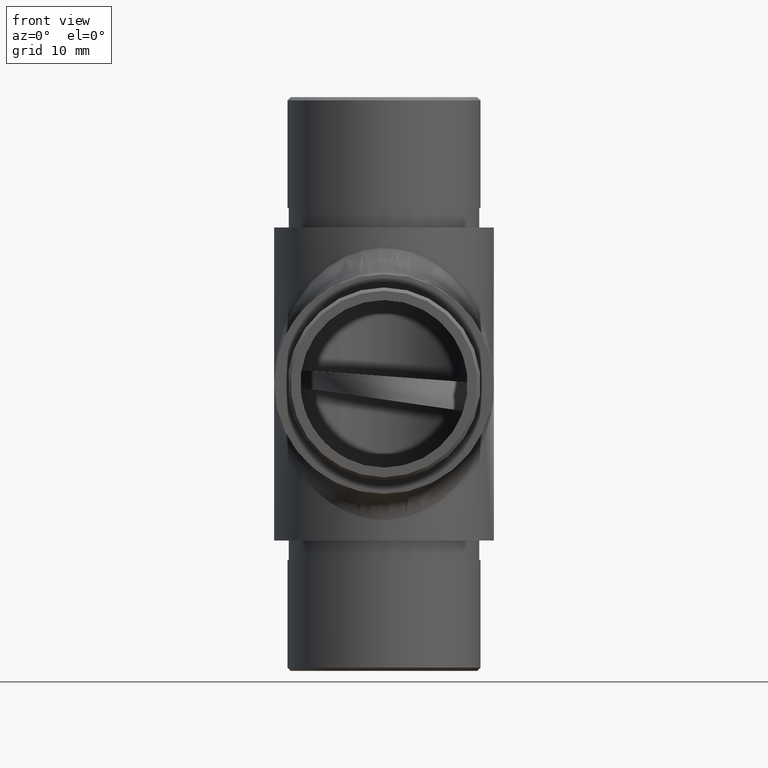
[diagram: clean part render]
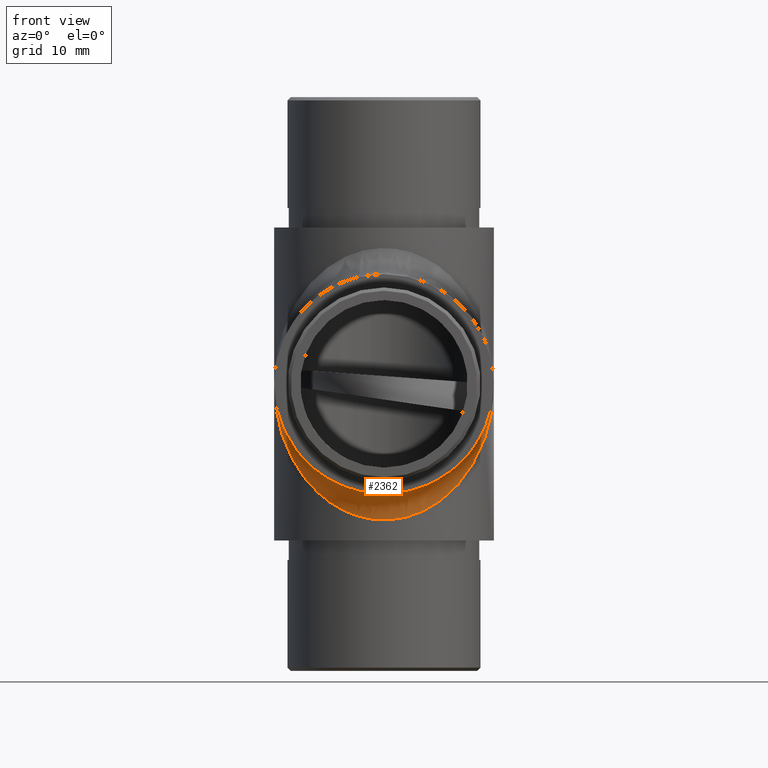
[diagram: same view with one face highlighted and labeled with its STEP entity id]
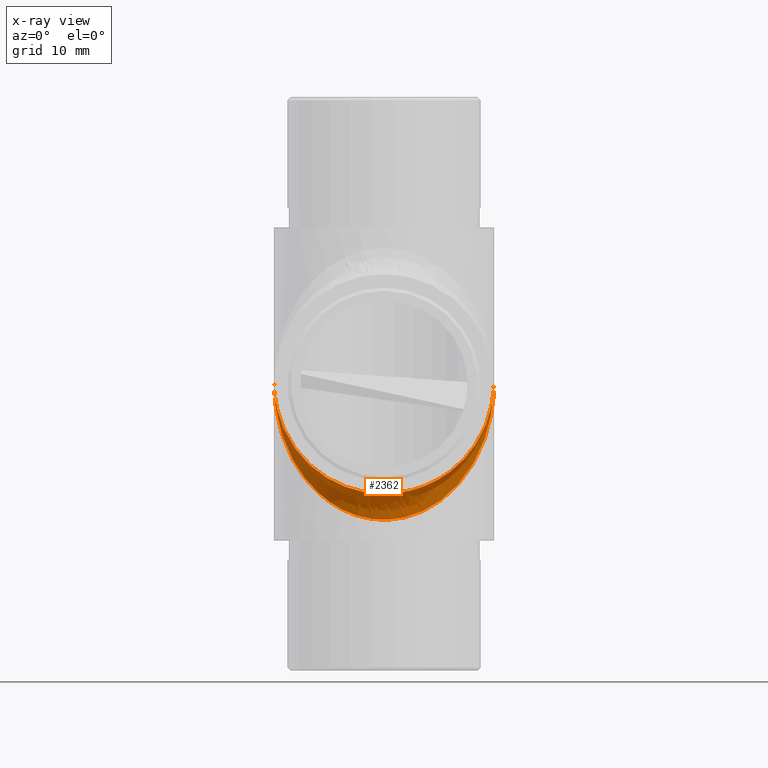
[diagram: x-ray of the same camera — body ghosted, the highlighted face saturated]
A machine part, front view. The second image highlights one B-rep face of the part: STEP entity #2362.
The next image is the same camera in x-ray: the body ghosted, the highlighted face saturated — about 0% of this face is hidden behind the body in this view.
In plain terms, the highlighted face is a freeform B-spline surface patch.
Its self-contained STEP definition (entity closure, byte-faithful):
#187 = CARTESIAN_POINT ( 'NONE',  ( -16.85000000000000100, 43.99999999999136000, 0.0000000000000000000 ) ) ;
#194 = CARTESIAN_POINT ( 'NONE',  ( 16.31108053040000900, 38.59395844683861300, -4.368911279164767500 ) ) ;
#233 = CARTESIAN_POINT ( 'NONE',  ( 15.14533538338070100, 36.53290217290492600, -9.239702652509180300 ) ) ;
#315 = CARTESIAN_POINT ( 'NONE',  ( 5.429333843744183600, 24.21489071946825800, -15.98940486219680500 ) ) ;
#395 = CARTESIAN_POINT ( 'NONE',  ( 2.205632572964829800, 27.25861658083938000, -20.71559906761628900 ) ) ;
#439 = CARTESIAN_POINT ( 'NONE',  ( -16.18320611204128700, 39.11993642511946900, -4.880063574875631400 ) ) ;
#477 = CARTESIAN_POINT ( 'NONE',  ( 4.368911278980258200, 23.81685287479314200, -16.31108053043648100 ) ) ;
#518 = CARTESIAN_POINT ( 'NONE',  ( -6.236427480021551300, 28.25924469784327900, -15.74075530214829000 ) ) ;
#532 = CARTESIAN_POINT ( 'NONE',  ( -16.85000000000000100, 43.99999999999136000, 0.0000000000000000000 ) ) ;
#560 = CARTESIAN_POINT ( 'NONE',  ( -4.342449596267225200, 27.64958167091530700, -16.35041832907626300 ) ) ;
#1094 = CARTESIAN_POINT ( 'NONE',  ( 15.14533538338084100, 34.76029734747895400, -7.467097827087195900 ) ) ;
#1135 = CARTESIAN_POINT ( 'NONE',  ( 9.124614200867558400, 29.72291654400032000, -14.27708345599276300 ) ) ;
#1175 = CARTESIAN_POINT ( 'NONE',  ( 10.06959098737964100, 30.36625838957310800, -13.63374161042177100 ) ) ;
#1214 = CARTESIAN_POINT ( 'NONE',  ( 11.13493074748825500, 31.30543222149326300, -15.70811502561981300 ) ) ;
#1255 = CARTESIAN_POINT ( 'NONE',  ( 16.31108053039977100, 39.63108872082771200, -5.406041553149431200 ) ) ;
#1289 =( BOUNDED_SURFACE ( )  B_SPLINE_SURFACE ( 3, 2, ( 
 ( #7553, #4851, #4723 ),
 ( #5660, #4884, #3945 ),
 ( #10125, #11187, #7589 ),
 ( #1255, #10245, #194 ),
 ( #6507, #11148, #4809 ),
 ( #233, #2036, #1094 ),
 ( #6547, #8364, #6590 ),
 ( #8325, #2913, #9225 ),
 ( #11027, #4766, #7432 ),
 ( #1214, #1175, #5732 ),
 ( #11108, #1135, #7512 ),
 ( #2956, #9262, #10167 ),
 ( #2076, #8403, #9304 ),
 ( #3901, #5700, #315 ),
 ( #6636, #4153, #477 ),
 ( #395, #10449, #3240 ),
 ( #9545, #5039, #9422 ),
 ( #2323, #3278, #9587 ),
 ( #8640, #5896, #6709 ),
 ( #6836, #8556, #5936 ),
 ( #11350, #560, #6797 ),
 ( #1422, #518, #2248 ),
 ( #4965, #6872, #1466 ),
 ( #7785, #3156, #4190 ),
 ( #1292, #2200, #10486 ),
 ( #5085, #7634, #11275 ),
 ( #7743, #2363, #11228 ),
 ( #1373, #10323, #8680 ),
 ( #5778, #8515, #3118 ),
 ( #4026, #5848, #5815 ),
 ( #4928, #439, #6750 ),
 ( #1333, #7670, #9468 ),
 ( #4070, #10363, #7709 ),
 ( #2285, #8601, #3197 ) ),
 .UNSPECIFIED., .F., .F., .T. ) 
 B_SPLINE_SURFACE_WITH_KNOTS ( ( 4, 2, 2, 2, 2, 2, 2, 2, 2, 2, 2, 2, 2, 2, 2, 2, 4 ),
 ( 3, 3 ),
 ( 4.712388980384482700, 4.908738521233869900, 5.105088062083257900, 5.301437602932646000, 5.497787143782034000, 5.694136684631422100, 5.890486225480810100, 6.086835766330198200, 6.283185307179586200, 6.479534848028974300, 6.675884388878362300, 6.872233929727750400, 7.068583470577138400, 7.264933011426526500, 7.461282552275914500, 7.657632093125302600, 7.853981633974689700 ),
 ( 0.0000000000000000000, 1.000000000000000000 ),
 .UNSPECIFIED. ) 
 GEOMETRIC_REPRESENTATION_ITEM ( )  RATIONAL_B_SPLINE_SURFACE ( (
 ( 1.000000000000000000, 1.000000000000000000, 1.000000000000000000),
 ( 1.000000000000000000, 1.000009746409141100, 1.000000000000000000),
 ( 1.000000000000000000, 0.9967613244628226200, 1.000000000000000000),
 ( 1.000000000000000000, 0.9841171504849133300, 1.000000000000000000),
 ( 1.000000000000000000, 0.9747108043681669300, 1.000000000000000000),
 ( 1.000000000000000000, 0.9506740353941340900, 1.000000000000000000),
 ( 1.000000000000000000, 0.9360421842784351100, 1.000000000000000000),
 ( 1.000000000000000000, 0.9031650994079384300, 1.000000000000000000),
 ( 1.000000000000000000, 0.8849191471439731300, 1.000000000000000000),
 ( 1.000000000000000000, 0.8471316604248794200, 1.000000000000000000),
 ( 1.000000000000000000, 0.8275942696101810100, 1.000000000000000000),
 ( 1.000000000000000000, 0.7902180086331380700, 1.000000000000000000),
 ( 1.000000000000000000, 0.7723968218336978400, 1.000000000000000000),
 ( 1.000000000000000000, 0.7418334178634920000, 1.000000000000000000),
 ( 1.000000000000000000, 0.7291288940308305900, 1.000000000000000000),
 ( 1.000000000000000000, 0.7117460025124818800, 1.000000000000000000),
 ( 1.000000000000000000, 0.7071067811865475700, 1.000000000000000000),
 ( 1.000000000000000000, 0.7071067811865475700, 1.000000000000000000),
 ( 1.000000000000000000, 0.7117460025127909700, 1.000000000000000000),
 ( 1.000000000000000000, 0.7291288940305221700, 1.000000000000000000),
 ( 1.000000000000000000, 0.7418334178635748200, 1.000000000000000000),
 ( 1.000000000000000000, 0.7723968218336183500, 1.000000000000000000),
 ( 1.000000000000000000, 0.7902180086332256700, 1.000000000000000000),
 ( 1.000000000000000000, 0.8275942696100954100, 1.000000000000000000),
 ( 1.000000000000000000, 0.8471316604245083800, 1.000000000000000000),
 ( 1.000000000000000000, 0.8849191471443441600, 1.000000000000000000),
 ( 1.000000000000000000, 0.9031650994078408400, 1.000000000000000000),
 ( 1.000000000000000000, 0.9360421842785344700, 1.000000000000000000),
 ( 1.000000000000000000, 0.9506740353940310600, 1.000000000000000000),
 ( 1.000000000000000000, 0.9747108043682701800, 1.000000000000000000),
 ( 1.000000000000000000, 0.9841171504850199100, 1.000000000000000000),
 ( 1.000000000000000000, 0.9967613244627169200, 1.000000000000000000),
 ( 1.000000000000000000, 1.000009746409221200, 1.000000000000000000),
 ( 1.000000000000000000, 1.000000000000000000, 1.000000000000000000) ) ) 
 REPRESENTATION_ITEM ( '' )  SURFACE ( )  );
#1292 = CARTESIAN_POINT ( 'NONE',  ( -11.13493074748609000, 31.30543222149109900, -15.70811502562270300 ) ) ;
#1333 = CARTESIAN_POINT ( 'NONE',  ( -16.74138341918963800, 41.79436742721428300, -2.729224874915700600 ) ) ;
#1344 = CARTESIAN_POINT ( 'NONE',  ( 16.85000000000000100, 43.99999999999136000, 0.0000000000000000000 ) ) ;
#1373 = CARTESIAN_POINT ( 'NONE',  ( -14.62296244341089100, 35.55561114034348700, -10.44899155630445100 ) ) ;
#1422 = CARTESIAN_POINT ( 'NONE',  ( -7.467097826962148400, 28.85466461655878900, -18.74066722519672400 ) ) ;
#1466 = CARTESIAN_POINT ( 'NONE',  ( -8.444388859714980100, 25.90571116057623500, -14.62296244336586800 ) ) ;
#2036 = CARTESIAN_POINT ( 'NONE',  ( 14.75521852980670100, 35.72321692286661900, -8.276783077119782600 ) ) ;
#2062 = EDGE_CURVE ( 'NONE', #6107, #8567, #5268, .T. ) ;
#2076 = CARTESIAN_POINT ( 'NONE',  ( 7.467097826961505400, 28.85466461655851600, -18.74066722519678100 ) ) ;
#2200 = CARTESIAN_POINT ( 'NONE',  ( -10.06959098737777000, 30.36625838956684500, -13.63374161042358600 ) ) ;
#2248 = CARTESIAN_POINT ( 'NONE',  ( -7.467097826961494700, 25.25933277479463300, -15.14533538343265200 ) ) ;
#2285 = CARTESIAN_POINT ( 'NONE',  ( -16.84999999999999800, 43.99999999999653300, 4.350575517637576400E-012 ) ) ;
#2323 = CARTESIAN_POINT ( 'NONE',  ( -1.102829920684192500, 27.14999999999136200, -20.84999999999999800 ) ) ;
#2362 = ADVANCED_FACE ( 'NONE', ( #3323 ), #1289, .F. ) ;
#2363 = CARTESIAN_POINT ( 'NONE',  ( -12.66332492391171800, 32.75385034841907800, -11.24614965157452900 ) ) ;
#2871 = CARTESIAN_POINT ( 'NONE',  ( 16.85000000000000500, 10.29999999999135700, -41.69999999999998200 ) ) ;
#2913 = CARTESIAN_POINT ( 'NONE',  ( 12.66332492391018900, 32.75385034841914200, -11.24614965157447300 ) ) ;
#2956 = CARTESIAN_POINT ( 'NONE',  ( 8.444388859713681600, 29.37703755662492700, -18.09428883942058200 ) ) ;
#3118 = CARTESIAN_POINT ( 'NONE',  ( -15.14533538338065800, 34.76029734748541200, -7.467097827087637400 ) ) ;
#3156 = CARTESIAN_POINT ( 'NONE',  ( -9.124614200866378900, 29.72291654399245100, -14.27708345599665000 ) ) ;
#3197 = CARTESIAN_POINT ( 'NONE',  ( -16.84999999999999800, 43.99999999999570800, 3.515932732479288600E-012 ) ) ;
#3240 = CARTESIAN_POINT ( 'NONE',  ( 2.205632572964069100, 23.28440093237507100, -16.74138341915222100 ) ) ;
#3278 = CARTESIAN_POINT ( 'NONE',  ( -0.8410305341891493000, 27.14999999999136200, -16.84999999999999400 ) ) ;
#3323 = FACE_OUTER_BOUND ( 'NONE', #6862, .T. ) ;
#3897 =( BOUNDED_CURVE ( )  B_SPLINE_CURVE ( 3, ( #6628, #2871, #5614, #187 ),
 .UNSPECIFIED., .F., .T. ) 
 B_SPLINE_CURVE_WITH_KNOTS ( ( 4, 4 ),
 ( 4.712388980384689700, 7.853981633974482800 ),
 .UNSPECIFIED. ) 
 CURVE ( )  GEOMETRIC_REPRESENTATION_ITEM ( )  RATIONAL_B_SPLINE_CURVE ( ( 1.000000000000000000, 0.3333333333333333700, 0.3333333333333333700, 1.000000000000000000 ) ) 
 REPRESENTATION_ITEM ( '' )  );
#3901 = CARTESIAN_POINT ( 'NONE',  ( 5.429333843744704100, 28.01059513779495400, -19.78510928052309800 ) ) ;
#3945 = CARTESIAN_POINT ( 'NONE',  ( 16.85000000000022500, 42.63535521121603000, -1.102842431229376100 ) ) ;
#4026 = CARTESIAN_POINT ( 'NONE',  ( -15.98940486225154700, 38.57066615637881300, -6.718196477108933500 ) ) ;
#4070 = CARTESIAN_POINT ( 'NONE',  ( -16.84999999999977000, 42.89715756876943000, -1.364644788774033600 ) ) ;
#4153 = CARTESIAN_POINT ( 'NONE',  ( 3.433620484055472000, 27.45426317449491200, -16.54573682549888100 ) ) ;
#4190 = CARTESIAN_POINT ( 'NONE',  ( -10.27832799304784200, 27.42200600639220200, -13.39756349122840700 ) ) ;
#4723 = CARTESIAN_POINT ( 'NONE',  ( 16.84999999999999800, 43.99999999999567300, 3.490128179448521500E-012 ) ) ;
#4766 = CARTESIAN_POINT ( 'NONE',  ( 11.83575767567037400, 31.88548071180320800, -12.11451928818586800 ) ) ;
#4809 = CARTESIAN_POINT ( 'NONE',  ( 15.98940486225156500, 37.28180352288563200, -5.429333843611384900 ) ) ;
#4851 = CARTESIAN_POINT ( 'NONE',  ( 16.84999999999999800, 43.99999999999609200, 3.904386717068524400E-012 ) ) ;
#4884 = CARTESIAN_POINT ( 'NONE',  ( 16.85000000000334500, 42.76626791916243800, -1.233732080837000500 ) ) ;
#4928 = CARTESIAN_POINT ( 'NONE',  ( -16.31108053040106000, 39.63108872083415000, -5.406041553149346000 ) ) ;
#4965 = CARTESIAN_POINT ( 'NONE',  ( -8.444388859716228900, 29.37703755662663200, -18.09428883941512500 ) ) ;
#5039 = CARTESIAN_POINT ( 'NONE',  ( 0.8410305341891267700, 27.14999999999136200, -16.84999999999999400 ) ) ;
#5045 = EDGE_CURVE ( 'NONE', #8567, #6107, #3897, .T. ) ;
#5085 = CARTESIAN_POINT ( 'NONE',  ( -12.69456777850468900, 32.86506925250910900, -13.77823774985326300 ) ) ;
#5268 =( BOUNDED_CURVE ( )  B_SPLINE_CURVE ( 3, ( #532, #8568, #8614, #1344 ),
 .UNSPECIFIED., .F., .T. ) 
 B_SPLINE_CURVE_WITH_KNOTS ( ( 4, 4 ),
 ( 4.712388980384689700, 7.853981633974482800 ),
 .UNSPECIFIED. ) 
 CURVE ( )  GEOMETRIC_REPRESENTATION_ITEM ( )  RATIONAL_B_SPLINE_CURVE ( ( 1.000000000000000000, 0.3333333333333333700, 0.3333333333333333700, 1.000000000000000000 ) ) 
 REPRESENTATION_ITEM ( '' )  );
#5614 = CARTESIAN_POINT ( 'NONE',  ( -16.84999999999999400, 10.29999999999135700, -41.69999999999998900 ) ) ;
#5660 = CARTESIAN_POINT ( 'NONE',  ( 16.84999999999976700, 42.89715756876760400, -1.364644788776298500 ) ) ;
#5700 = CARTESIAN_POINT ( 'NONE',  ( 4.342449596267668400, 27.64958167091524300, -16.35041832907633400 ) ) ;
#5732 = CARTESIAN_POINT ( 'NONE',  ( 11.13493074748765500, 28.29188497437299400, -12.69456777849915100 ) ) ;
#5778 = CARTESIAN_POINT ( 'NONE',  ( -15.14533538338204400, 36.53290217290816600, -9.239702652509169700 ) ) ;
#5815 = CARTESIAN_POINT ( 'NONE',  ( -15.98940486225175500, 37.28180352287920100, -5.429333843610924900 ) ) ;
#5848 = CARTESIAN_POINT ( 'NONE',  ( -15.78273877976839900, 37.94284857874085000, -6.057151421240127400 ) ) ;
#5896 = CARTESIAN_POINT ( 'NONE',  ( -1.673412477040923100, 27.20255413854964000, -16.79744586144421700 ) ) ;
#5936 = CARTESIAN_POINT ( 'NONE',  ( -4.368911278979851400, 23.81685287479315200, -16.31108053043655900 ) ) ;
#6107 = VERTEX_POINT ( 'NONE', #9093 ) ;
#6507 = CARTESIAN_POINT ( 'NONE',  ( 15.98940486225287600, 38.57066615638203200, -6.718196477108945100 ) ) ;
#6547 = CARTESIAN_POINT ( 'NONE',  ( 14.62296244340801900, 35.55561114033919500, -10.44899155630450900 ) ) ;
#6590 = CARTESIAN_POINT ( 'NONE',  ( 14.62296244340836000, 33.55100844368531200, -8.444388859650976200 ) ) ;
#6628 = CARTESIAN_POINT ( 'NONE',  ( 16.85000000000000100, 43.99999999999136000, 0.0000000000000000000 ) ) ;
#6636 = CARTESIAN_POINT ( 'NONE',  ( 4.368911278980132100, 27.68891946955475800, -20.18314712519821800 ) ) ;
#6709 = CARTESIAN_POINT ( 'NONE',  ( -2.205632572964586000, 23.28440093237508500, -16.74138341915211800 ) ) ;
#6750 = CARTESIAN_POINT ( 'NONE',  ( -16.31108053040015800, 38.59395844684532800, -4.368911279164065000 ) ) ;
#6797 = CARTESIAN_POINT ( 'NONE',  ( -5.429333843743753700, 24.21489071946831500, -15.98940486219699300 ) ) ;
#6836 = CARTESIAN_POINT ( 'NONE',  ( -4.368911278980185400, 27.68891946955477600, -20.18314712519820400 ) ) ;
#6862 = EDGE_LOOP ( 'NONE', ( #7498, #7472 ) ) ;
#6872 = CARTESIAN_POINT ( 'NONE',  ( -7.205786267712555900, 28.66320101736110700, -15.33679898263342300 ) ) ;
#7432 = CARTESIAN_POINT ( 'NONE',  ( 12.69456777850144900, 30.22176225013374000, -11.13493074748503300 ) ) ;
#7472 = ORIENTED_EDGE ( 'NONE', *, *, #2062, .F. ) ;
#7498 = ORIENTED_EDGE ( 'NONE', *, *, #5045, .F. ) ;
#7512 = CARTESIAN_POINT ( 'NONE',  ( 10.27832799305030200, 27.42200600639757700, -13.39756349122677300 ) ) ;
#7553 = CARTESIAN_POINT ( 'NONE',  ( 16.84999999999999800, 43.99999999999650400, 4.318645254688526800E-012 ) ) ;
#7589 = CARTESIAN_POINT ( 'NONE',  ( 16.74138341919002900, 41.27077512507888500, -2.205632572772831000 ) ) ;
#7634 = CARTESIAN_POINT ( 'NONE',  ( -11.83575767567143600, 31.88548071180857900, -12.11451928818475400 ) ) ;
#7670 = CARTESIAN_POINT ( 'NONE',  ( -16.71365960650736700, 41.52494544016030900, -2.475054559828975700 ) ) ;
#7709 = CARTESIAN_POINT ( 'NONE',  ( -16.85000000000022500, 42.63535521120861200, -1.102842431213726600 ) ) ;
#7743 = CARTESIAN_POINT ( 'NONE',  ( -13.39756349118887300, 33.72167200688461000, -12.71828716060839600 ) ) ;
#7785 = CARTESIAN_POINT ( 'NONE',  ( -10.27832799304812300, 30.60243650876283900, -16.57799399359915800 ) ) ;
#8325 = CARTESIAN_POINT ( 'NONE',  ( 13.39756349119168300, 33.72167200688882400, -12.71828716060845300 ) ) ;
#8364 = CARTESIAN_POINT ( 'NONE',  ( 14.11730994237764500, 34.67240740627911300, -9.327592593711411700 ) ) ;
#8403 = CARTESIAN_POINT ( 'NONE',  ( 6.236427480020731600, 28.25924469784321100, -15.74075530214835800 ) ) ;
#8515 = CARTESIAN_POINT ( 'NONE',  ( -14.75521852980175400, 35.72321692287955800, -8.276783077123976500 ) ) ;
#8556 = CARTESIAN_POINT ( 'NONE',  ( -3.433620484054097100, 27.45426317449259900, -16.54573682549644100 ) ) ;
#8567 = VERTEX_POINT ( 'NONE', #9434 ) ;
#8568 = CARTESIAN_POINT ( 'NONE',  ( -16.85000000000000500, 2.299999999992973900, -33.69999999999999600 ) ) ;
#8601 = CARTESIAN_POINT ( 'NONE',  ( -16.84999999999999800, 43.99999999999612800, 3.933254125058433300E-012 ) ) ;
#8614 = CARTESIAN_POINT ( 'NONE',  ( 16.84999999999999400, 2.299999999992967200, -33.69999999999999600 ) ) ;
#8640 = CARTESIAN_POINT ( 'NONE',  ( -2.205632572964885800, 27.25861658083939100, -20.71559906761627400 ) ) ;
#8680 = CARTESIAN_POINT ( 'NONE',  ( -14.62296244340791400, 33.55100844369152900, -8.444388859651640500 ) ) ;
#9093 = CARTESIAN_POINT ( 'NONE',  ( -16.85000000000000100, 43.99999999999136000, 0.0000000000000000000 ) ) ;
#9225 = CARTESIAN_POINT ( 'NONE',  ( 13.39756349118981000, 31.28171283938444700, -10.27832799310602100 ) ) ;
#9262 = CARTESIAN_POINT ( 'NONE',  ( 7.205786267711015800, 28.66320101735269400, -15.33679898263766900 ) ) ;
#9304 = CARTESIAN_POINT ( 'NONE',  ( 7.467097826960850800, 25.25933277479457900, -15.14533538343292700 ) ) ;
#9422 = CARTESIAN_POINT ( 'NONE',  ( 1.102829920684054200, 23.14999999999136200, -16.84999999999999800 ) ) ;
#9434 = CARTESIAN_POINT ( 'NONE',  ( 16.85000000000000100, 43.99999999999136000, 0.0000000000000000000 ) ) ;
#9468 = CARTESIAN_POINT ( 'NONE',  ( -16.74138341918991600, 41.27077512507234000, -2.205632572773394500 ) ) ;
#9545 = CARTESIAN_POINT ( 'NONE',  ( 1.102829920684162700, 27.14999999999136200, -20.84999999999999800 ) ) ;
#9587 = CARTESIAN_POINT ( 'NONE',  ( -1.102829920684084100, 23.14999999999136200, -16.84999999999999800 ) ) ;
#10125 = CARTESIAN_POINT ( 'NONE',  ( 16.74138341919089600, 41.79436742722060000, -2.729224874915787200 ) ) ;
#10167 = CARTESIAN_POINT ( 'NONE',  ( 8.444388859712431000, 25.90571116057077800, -14.62296244336757100 ) ) ;
#10245 = CARTESIAN_POINT ( 'NONE',  ( 16.18320611204456600, 39.11993642510591200, -4.880063574867495600 ) ) ;
#10323 = CARTESIAN_POINT ( 'NONE',  ( -14.11730994237609400, 34.67240740627905600, -9.327592593711459700 ) ) ;
#10363 = CARTESIAN_POINT ( 'NONE',  ( -16.85000000000334500, 42.76626791915093400, -1.233732080821719400 ) ) ;
#10449 = CARTESIAN_POINT ( 'NONE',  ( 1.673412477038660900, 27.20255413854713600, -16.79744586144184000 ) ) ;
#10486 = CARTESIAN_POINT ( 'NONE',  ( -11.13493074748621200, 28.29188497436720300, -12.69456777850059700 ) ) ;
#11027 = CARTESIAN_POINT ( 'NONE',  ( 12.69456777850250800, 32.86506925250692700, -13.77823774985617100 ) ) ;
#11108 = CARTESIAN_POINT ( 'NONE',  ( 10.27832799305058100, 30.60243650876447300, -16.57799399359378300 ) ) ;
#11148 = CARTESIAN_POINT ( 'NONE',  ( 15.78273877976366900, 37.94284857875369000, -6.057151421244000700 ) ) ;
#11187 = CARTESIAN_POINT ( 'NONE',  ( 16.71365960650401700, 41.52494544017329000, -2.475054559837419600 ) ) ;
#11228 = CARTESIAN_POINT ( 'NONE',  ( -13.39756349119031900, 31.28171283937834000, -10.27832799310526600 ) ) ;
#11275 = CARTESIAN_POINT ( 'NONE',  ( -12.69456777850290800, 30.22176225013954500, -11.13493074748357800 ) ) ;
#11350 = CARTESIAN_POINT ( 'NONE',  ( -5.429333843744272400, 28.01059513779477000, -19.78510928052304500 ) ) ;